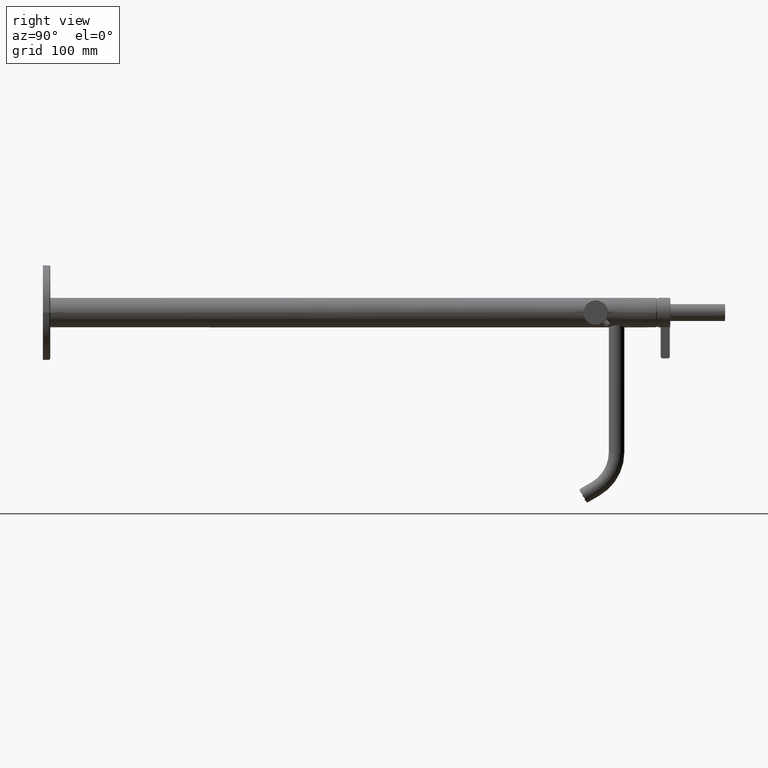
[diagram: clean part render]
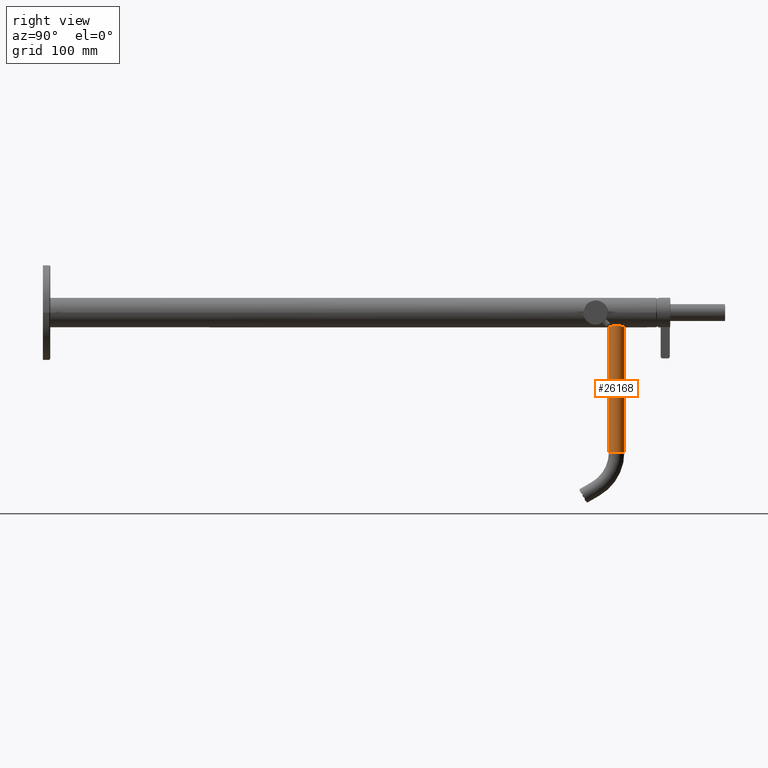
[diagram: same view with one face highlighted and labeled with its STEP entity id]
A machine part, right view. The second image highlights one B-rep face of the part: STEP entity #26168.
In plain terms, the highlighted cylindrical surface (edge-blend (fillet) strip) has radius 11 mm, axis along (0, 0, -1).
Its self-contained STEP definition (entity closure, byte-faithful):
#10443=CARTESIAN_POINT('',(1.756270668056E-13,8.565E2,-2.1E1));
#10549=CARTESIAN_POINT('',(4.945029112773E-13,8.785E2,-2.1E1));
#10551=CARTESIAN_POINT('',(4.945029112773E-13,8.785E2,-2.1E1));
#10552=CARTESIAN_POINT('',(1.057195868740E-1,8.785E2,-2.1E1));
#10553=CARTESIAN_POINT('',(3.171736826902E-1,8.784969528141E2,
-2.099840361360E1));
#10554=CARTESIAN_POINT('',(6.343988116952E-1,8.784832220465E2,
-2.099121456189E1));
#10555=CARTESIAN_POINT('',(9.513806419409E-1,8.784603193081E2,
-2.097923781801E1));
#10556=CARTESIAN_POINT('',(1.268151523067E0,8.784282033556E2,
-2.096247372802E1));
#10557=CARTESIAN_POINT('',(1.584365487346E0,8.783868625142E2,
-2.094094708410E1));
#10558=CARTESIAN_POINT('',(1.900283264243E0,8.783361979414E2,
-2.091464658888E1));
#10559=CARTESIAN_POINT('',(2.215833512439E0,8.782761116206E2,
-2.088357150814E1));
#10560=CARTESIAN_POINT('',(2.530513786836E0,8.782065989690E2,
-2.084777953925E1));
#10561=CARTESIAN_POINT('',(2.844444347306E0,8.781275225864E2,
-2.080727052283E1));
#10562=CARTESIAN_POINT('',(3.157355882450E0,8.780388099815E2,
-2.076208938421E1));
#10563=CARTESIAN_POINT('',(3.468961618219E0,8.779404073758E2,
-2.071230204559E1));
#10564=CARTESIAN_POINT('',(3.779326524683E0,8.778321290528E2,
-2.065792083292E1));
#10565=CARTESIAN_POINT('',(4.087925135032E0,8.777139851742E2,
-2.059907000912E1));
#10566=CARTESIAN_POINT('',(4.394832358277E0,8.775857600601E2,
-2.053577534049E1));
#10567=CARTESIAN_POINT('',(4.699532997044E0,8.774474580018E2,
-2.046818742027E1));
#10568=CARTESIAN_POINT('',(5.001665580458E0,8.772990494757E2,
-2.039645388109E1));
#10569=CARTESIAN_POINT('',(5.301126743277E0,8.771403608234E2,
-2.032067018122E1));
#10570=CARTESIAN_POINT('',(5.597203845577E0,8.769715506810E2,
-2.024110673899E1));
#10571=CARTESIAN_POINT('',(5.889783726927E0,8.767924650581E2,
-2.015790188571E1));
#10572=CARTESIAN_POINT('',(6.178306937871E0,8.766032104763E2,
-2.007133399622E1));
#10573=CARTESIAN_POINT('',(6.462337893027E0,8.764038486425E2,
-1.998167598020E1));
#10574=CARTESIAN_POINT('',(6.741216774935E0,8.761946359070E2,
-1.988930215332E1));
#10575=CARTESIAN_POINT('',(7.014537474509E0,8.759756892338E2,
-1.979453681983E1));
#10576=CARTESIAN_POINT('',(7.281700552340E0,8.757473097450E2,
-1.969779708829E1));
#10577=CARTESIAN_POINT('',(7.542105232468E0,8.755098799238E2,
-1.959953888410E1));
#10578=CARTESIAN_POINT('',(7.795552572762E0,8.752634460980E2,
-1.950008888739E1));
#10579=CARTESIAN_POINT('',(8.041249693750E0,8.750086655583E2,
-1.940002825822E1));
#10580=CARTESIAN_POINT('',(8.278566596107E0,8.747461754350E2,
-1.929991620680E1));
#10581=CARTESIAN_POINT('',(8.507178652165E0,8.744763549474E2,
-1.920020653510E1));
#10582=CARTESIAN_POINT('',(8.726571397324E0,8.741998789261E2,
-1.910145332887E1));
#10583=CARTESIAN_POINT('',(8.936396136391E0,8.739173143229E2,
-1.900415473448E1));
#10584=CARTESIAN_POINT('',(9.136113500622E0,8.736296098301E2,
-1.890891334309E1));
#10585=CARTESIAN_POINT('',(9.325646326941E0,8.733371704331E2,
-1.881612142152E1));
#10586=CARTESIAN_POINT('',(9.504701699093E0,8.730407880893E2,
-1.872627297949E1));
#10587=CARTESIAN_POINT('',(9.673214485957E0,8.727410005948E2,
-1.863974776534E1));
#10588=CARTESIAN_POINT('',(9.831212107934E0,8.724381999918E2,
-1.855686419843E1));
#10589=CARTESIAN_POINT('',(9.978482080578E0,8.721333346363E2,
-1.847805640911E1));
#10590=CARTESIAN_POINT('',(1.011521951086E1,8.718266144182E2,
-1.840352764898E1));
#10591=CARTESIAN_POINT('',(1.024142196660E1,8.715186877094E2,
-1.833356679317E1));
#10592=CARTESIAN_POINT('',(1.035726240258E1,8.712098622968E2,
-1.826834725278E1));
#10593=CARTESIAN_POINT('',(1.046293747529E1,8.709003329419E2,
-1.820800430403E1));
#10594=CARTESIAN_POINT('',(1.055852872761E1,8.705906635197E2,
-1.815271691956E1));
#10595=CARTESIAN_POINT('',(1.064433268744E1,8.702807164126E2,
-1.810251681265E1));
#10596=CARTESIAN_POINT('',(1.072046319129E1,8.699708963593E2,
-1.805751805388E1));
#10597=CARTESIAN_POINT('',(1.078712492572E1,8.696612877907E2,
-1.801775987844E1));
#10598=CARTESIAN_POINT('',(1.084452919941E1,8.693517564962E2,
-1.798325465032E1));
#10599=CARTESIAN_POINT('',(1.089277696720E1,8.690426809624E2,
-1.795406017018E1));
#10600=CARTESIAN_POINT('',(1.093206840590E1,8.687337278019E2,
-1.793015420553E1));
#10601=CARTESIAN_POINT('',(1.096249507803E1,8.684250112573E2,
-1.791156068474E1));
#10602=CARTESIAN_POINT('',(1.098414941519E1,8.681166490539E2,
-1.789828464656E1));
#10603=CARTESIAN_POINT('',(1.099712263503E1,8.678082302815E2,
-1.789031364586E1));
#10604=CARTESIAN_POINT('',(1.100143846563E1,8.675000180198E2,
-1.788765904041E1));
#10605=CARTESIAN_POINT('',(1.099712350237E1,8.671917971694E2,
-1.789031311255E1));
#10606=CARTESIAN_POINT('',(1.098415059335E1,8.668833708862E2,
-1.789828392349E1));
#10607=CARTESIAN_POINT('',(1.096249637219E1,8.665750039658E2,
-1.791155989242E1));
#10608=CARTESIAN_POINT('',(1.093207029521E1,8.662662890496E2,
-1.793015305313E1));
#10609=CARTESIAN_POINT('',(1.089277930555E1,8.659573355449E2,
-1.795405875095E1));
#10610=CARTESIAN_POINT('',(1.084453218292E1,8.656482610592E2,
-1.798325285015E1));
#10611=CARTESIAN_POINT('',(1.078712851596E1,8.653387300720E2,
-1.801775772859E1));
#10612=CARTESIAN_POINT('',(1.072046695088E1,8.650291199510E2,
-1.805751582100E1));
#10613=CARTESIAN_POINT('',(1.064433723168E1,8.647193010079E2,
-1.810251413935E1));
#10614=CARTESIAN_POINT('',(1.055853359698E1,8.644093530832E2,
-1.815271408679E1));
#10615=CARTESIAN_POINT('',(1.046294281352E1,8.640996835140E2,
-1.820800123462E1));
#10616=CARTESIAN_POINT('',(1.035726851657E1,8.637901547615E2,
-1.826834378553E1));
#10617=CARTESIAN_POINT('',(1.024142815788E1,8.634813280533E2,
-1.833356333382E1));
#10618=CARTESIAN_POINT('',(1.011522632554E1,8.631734015209E2,
-1.840352390173E1));
#10619=CARTESIAN_POINT('',(9.978489303724E0,8.628666809227E2,
-1.847805250686E1));
#10620=CARTESIAN_POINT('',(9.831220258650E0,8.625618162766E2,
-1.855685987564E1));
#10621=CARTESIAN_POINT('',(9.673223565389E0,8.622590161249E2,
-1.863974305483E1));
#10622=CARTESIAN_POINT('',(9.504709326907E0,8.619592249083E2,
-1.872626911439E1));
#10623=CARTESIAN_POINT('',(9.325652440555E0,8.616628392517E2,
-1.881611839972E1));
#10624=CARTESIAN_POINT('',(9.136117890381E0,8.613703966977E2,
-1.890891122294E1));
#10625=CARTESIAN_POINT('',(8.936401392715E0,8.610826929970E2,
-1.900415226232E1));
#10626=CARTESIAN_POINT('',(8.726576325795E0,8.608001275187E2,
-1.910145107203E1));
#10627=CARTESIAN_POINT('',(8.507185825789E0,8.605236538192E2,
-1.920020335245E1));
#10628=CARTESIAN_POINT('',(8.278572714410E0,8.602538315144E2,
-1.929991358911E1));
#10629=CARTESIAN_POINT('',(8.041255803153E0,8.599913410128E2,
-1.940002571922E1));
#10630=CARTESIAN_POINT('',(7.795560389878E0,8.597365617632E2,
-1.950008575834E1));
#10631=CARTESIAN_POINT('',(7.542111723343E0,8.594901261110E2,
-1.959953640470E1));
#10632=CARTESIAN_POINT('',(7.281702886722E0,8.592526922616E2,
-1.969779623951E1));
#10633=CARTESIAN_POINT('',(7.014538509467E0,8.590243115945E2,
-1.979453646135E1));
#10634=CARTESIAN_POINT('',(6.741215777330E0,8.588053633059E2,
-1.988930249556E1));
#10635=CARTESIAN_POINT('',(6.462337676200E0,8.585961512178E2,
-1.998167604481E1));
#10636=CARTESIAN_POINT('',(6.178307232903E0,8.583967897300E2,
-2.007133390320E1));
#10637=CARTESIAN_POINT('',(5.889784244112E0,8.582075352615E2,
-2.015790173752E1));
#10638=CARTESIAN_POINT('',(5.597203184209E0,8.580284489136E2,
-2.024110692739E1));
#10639=CARTESIAN_POINT('',(5.301126046448E0,8.578596388090E2,
-2.032067035696E1));
#10640=CARTESIAN_POINT('',(5.001666075318E0,8.577009507757E2,
-2.039645376024E1));
#10641=CARTESIAN_POINT('',(4.699532635255E0,8.575525418302E2,
-2.046818750213E1));
#10642=CARTESIAN_POINT('',(4.394834377928E0,8.574142408648E2,
-2.053577488884E1));
#10643=CARTESIAN_POINT('',(4.087930282464E0,8.572860169003E2,
-2.059906898092E1));
#10644=CARTESIAN_POINT('',(3.779330703333E0,8.571678724467E2,
-2.065792008141E1));
#10645=CARTESIAN_POINT('',(3.468962940559E0,8.570595930328E2,
-2.071230183847E1));
#10646=CARTESIAN_POINT('',(3.157355723496E0,8.569611899778E2,
-2.076208940511E1));
#10647=CARTESIAN_POINT('',(2.844445955401E0,8.568724778555E2,
-2.080727029742E1));
#10648=CARTESIAN_POINT('',(2.530515031813E0,8.567934013169E2,
-2.084777939222E1));
#10649=CARTESIAN_POINT('',(2.215834702155E0,8.567238886325E2,
-2.088357137759E1));
#10650=CARTESIAN_POINT('',(1.900284537742E0,8.566638022568E2,
-2.091464648594E1));
#10651=CARTESIAN_POINT('',(1.584363387301E0,8.566131371737E2,
-2.094094724630E1));
#10652=CARTESIAN_POINT('',(1.268151022719E0,8.565717965847E2,
-2.096247375923E1));
#10653=CARTESIAN_POINT('',(9.513782058143E-1,8.565396804843E2,
-2.097923792646E1));
#10654=CARTESIAN_POINT('',(6.343989097739E-1,8.565167779628E2,
-2.099121455704E1));
#10655=CARTESIAN_POINT('',(3.171714323179E-1,8.565030471081E2,
-2.099840365434E1));
#10656=CARTESIAN_POINT('',(1.057186928442E-1,8.565E2,-2.1E1));
#10657=CARTESIAN_POINT('',(1.756270668056E-13,8.565E2,-2.1E1));
#10916=DIRECTION('',(0.E0,0.E0,-1.E0));
#10917=VECTOR('',#10916,1.770384757729E2);
#10918=CARTESIAN_POINT('',(1.756270668056E-13,8.565E2,-2.1E1));
#10919=LINE('',#10918,#10917);
#10920=DIRECTION('',(0.E0,0.E0,-1.E0));
#10921=VECTOR('',#10920,1.770384757729E2);
#10922=CARTESIAN_POINT('',(4.945029112773E-13,8.785E2,-2.1E1));
#10923=LINE('',#10922,#10921);
#10924=CARTESIAN_POINT('',(0.E0,8.675E2,-1.980384757729E2));
#10925=DIRECTION('',(0.E0,0.E0,-1.E0));
#10926=DIRECTION('',(0.E0,1.E0,0.E0));
#10927=AXIS2_PLACEMENT_3D('',#10924,#10925,#10926);
#18802=CARTESIAN_POINT('',(0.E0,8.565E2,-1.980384757729E2));
#18803=CARTESIAN_POINT('',(0.E0,8.785E2,-1.980384757729E2));
#18804=VERTEX_POINT('',#18802);
#18805=VERTEX_POINT('',#18803);
#18822=VERTEX_POINT('',#10443);
#18823=VERTEX_POINT('',#10549);
#26156=CARTESIAN_POINT('',(0.E0,8.675E2,0.E0));
#26157=DIRECTION('',(0.E0,0.E0,-1.E0));
#26158=DIRECTION('',(0.E0,-1.E0,0.E0));
#26159=AXIS2_PLACEMENT_3D('',#26156,#26157,#26158);
#26160=CYLINDRICAL_SURFACE('',#26159,1.1E1);
#26161=ORIENTED_EDGE('',*,*,#26136,.F.);
#26162=ORIENTED_EDGE('',*,*,#26151,.T.);
#26164=ORIENTED_EDGE('',*,*,#26163,.T.);
#26165=ORIENTED_EDGE('',*,*,#26147,.F.);
#26166=EDGE_LOOP('',(#26161,#26162,#26164,#26165));
#26167=FACE_OUTER_BOUND('',#26166,.F.);
#26168=ADVANCED_FACE('',(#26167),#26160,.T.);
#10658=B_SPLINE_CURVE_WITH_KNOTS('',3,(#10551,#10552,#10553,#10554,#10555,
#10556,#10557,#10558,#10559,#10560,#10561,#10562,#10563,#10564,#10565,#10566,
#10567,#10568,#10569,#10570,#10571,#10572,#10573,#10574,#10575,#10576,#10577,
#10578,#10579,#10580,#10581,#10582,#10583,#10584,#10585,#10586,#10587,#10588,
#10589,#10590,#10591,#10592,#10593,#10594,#10595,#10596,#10597,#10598,#10599,
#10600,#10601,#10602,#10603,#10604,#10605,#10606,#10607,#10608,#10609,#10610,
#10611,#10612,#10613,#10614,#10615,#10616,#10617,#10618,#10619,#10620,#10621,
#10622,#10623,#10624,#10625,#10626,#10627,#10628,#10629,#10630,#10631,#10632,
#10633,#10634,#10635,#10636,#10637,#10638,#10639,#10640,#10641,#10642,#10643,
#10644,#10645,#10646,#10647,#10648,#10649,#10650,#10651,#10652,#10653,#10654,
#10655,#10656,#10657),.UNSPECIFIED.,.F.,.F.,(4,1,1,1,1,1,1,1,1,1,1,1,1,1,1,1,1,
1,1,1,1,1,1,1,1,1,1,1,1,1,1,1,1,1,1,1,1,1,1,1,1,1,1,1,1,1,1,1,1,1,1,1,1,1,1,1,1,
1,1,1,1,1,1,1,1,1,1,1,1,1,1,1,1,1,1,1,1,1,1,1,1,1,1,1,1,1,1,1,1,1,1,1,1,1,1,1,1,
1,1,1,1,1,1,1,4),(0.E0,9.615384615385E-3,1.923076923077E-2,2.884615384615E-2,
3.846153846154E-2,4.807692307692E-2,5.769230769231E-2,6.730769230769E-2,
7.692307692308E-2,8.653846153846E-2,9.615384615385E-2,1.057692307692E-1,
1.153846153846E-1,1.25E-1,1.346153846154E-1,1.442307692308E-1,1.538461538462E-1,
1.634615384615E-1,1.730769230769E-1,1.826923076923E-1,1.923076923077E-1,
2.019230769231E-1,2.115384615385E-1,2.211538461538E-1,2.307692307692E-1,
2.403846153846E-1,2.5E-1,2.596153846154E-1,2.692307692308E-1,2.788461538462E-1,
2.884615384615E-1,2.980769230769E-1,3.076923076923E-1,3.173076923077E-1,
3.269230769231E-1,3.365384615385E-1,3.461538461538E-1,3.557692307692E-1,
3.653846153846E-1,3.75E-1,3.846153846154E-1,3.942307692308E-1,4.038461538462E-1,
4.134615384615E-1,4.230769230769E-1,4.326923076923E-1,4.423076923077E-1,
4.519230769231E-1,4.615384615385E-1,4.711538461538E-1,4.807692307692E-1,
4.903846153846E-1,5.E-1,5.096153846154E-1,5.192307692308E-1,5.288461538462E-1,
5.384615384615E-1,5.480769230769E-1,5.576923076923E-1,5.673076923077E-1,
5.769230769231E-1,5.865384615385E-1,5.961538461538E-1,6.057692307692E-1,
6.153846153846E-1,6.25E-1,6.346153846154E-1,6.442307692308E-1,6.538461538462E-1,
6.634615384615E-1,6.730769230769E-1,6.826923076923E-1,6.923076923077E-1,
7.019230769231E-1,7.115384615385E-1,7.211538461538E-1,7.307692307692E-1,
7.403846153846E-1,7.5E-1,7.596153846154E-1,7.692307692308E-1,7.788461538462E-1,
7.884615384615E-1,7.980769230769E-1,8.076923076923E-1,8.173076923077E-1,
8.269230769231E-1,8.365384615385E-1,8.461538461538E-1,8.557692307692E-1,
8.653846153846E-1,8.75E-1,8.846153846154E-1,8.942307692308E-1,9.038461538462E-1,
9.134615384615E-1,9.230769230769E-1,9.326923076923E-1,9.423076923077E-1,
9.519230769231E-1,9.615384615385E-1,9.711538461538E-1,9.807692307692E-1,
9.903846153846E-1,1.E0),.UNSPECIFIED.);
#10928=CIRCLE('',#10927,1.1E1);
#26136=EDGE_CURVE('',#18823,#18822,#10658,.T.);
#26147=EDGE_CURVE('',#18822,#18804,#10919,.T.);
#26151=EDGE_CURVE('',#18823,#18805,#10923,.T.);
#26163=EDGE_CURVE('',#18805,#18804,#10928,.T.);